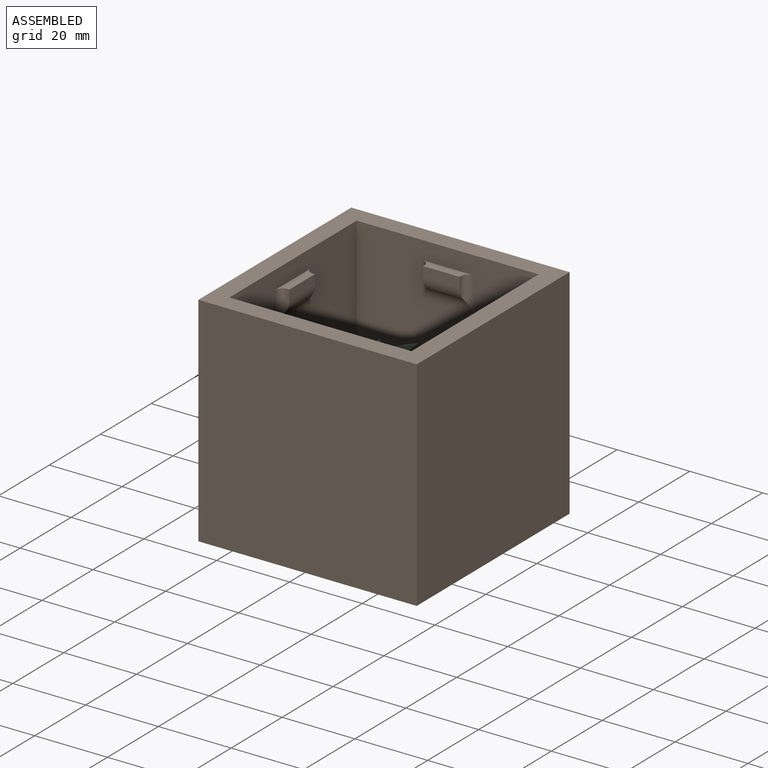
[diagram: assembled view]
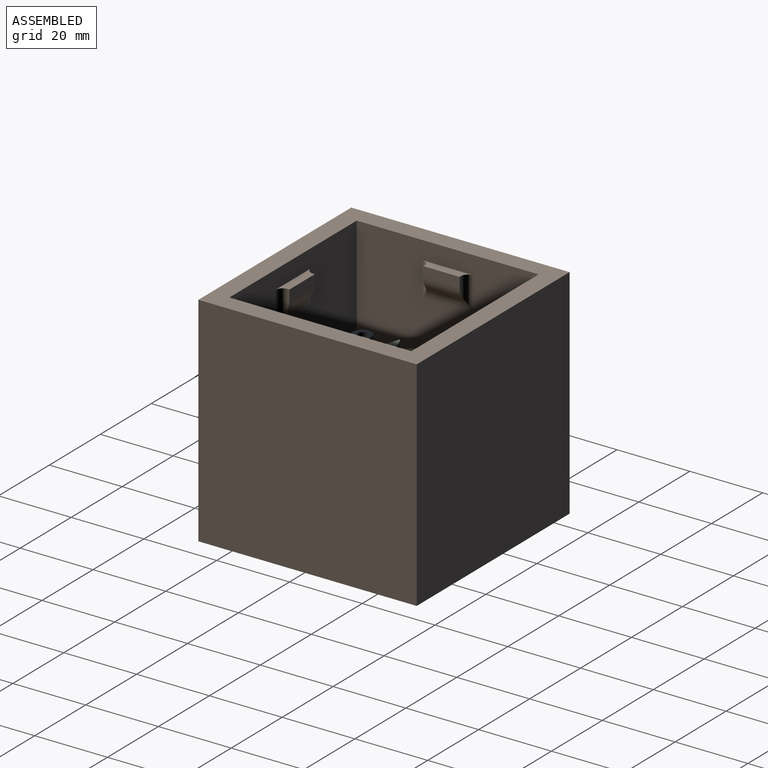
[diagram: assembled view, second angle]
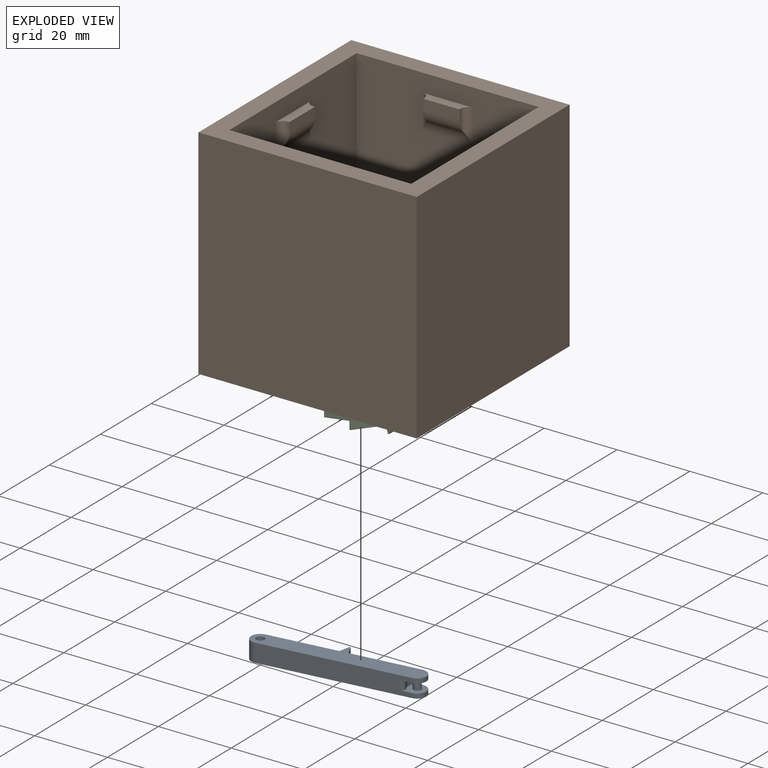
[diagram: exploded view]
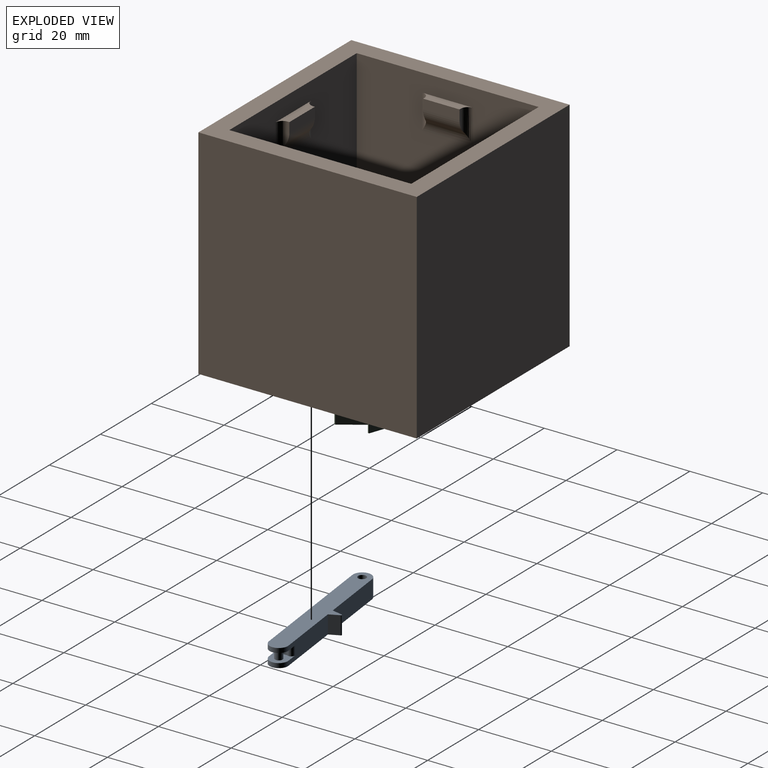
[diagram: exploded view, second angle]
ASSEMBLY  parts=3 mates=2
PART A: 18 faces, bbox 45x8x5 mm
  f0: cylinder r=2.5mm len=2.5mm, axis (0,0,-1), area 5.5mm2, adj f12,f14,f15,f16
  f1: cylinder r=1.04mm len=2.5mm, axis (0,0,-1), area 16.3mm2, adj f12,f14
  f2: plane 5x2.79mm, normal (-0.95,0.32,0), area 14.7mm2, adj f3,f9,f10,f17
  f3: plane 18.83x5mm, normal (0,1,0), area 94.2mm2, adj f2,f4,f9,f10
  f4: cylinder r=2.5mm len=5mm, axis (0,0,-1), area 39.3mm2, adj f3,f5,f9,f10
  f5: plane 40x5mm, normal (0,-1,0), area 192.1mm2, adj f4,f9,f10,f11,f12,f13,f14,f15
  f6: plane 18.83x5mm, normal (0,1,0), area 86.3mm2, adj f7,f9,f10,f11,f12,f13,f14,f16
  f7: plane 5x2.79mm, normal (0.95,0.32,0), area 14.7mm2, adj f6,f9,f10,f17
  f8: cylinder r=1.12mm len=5mm, axis (0,0,-1), area 35.3mm2, adj f9,f10
  f9: plane 45x7.96mm, normal (0,0,1), area 219.6mm2, adj f2,f3,f4,f5,f6,f7,f8,f13
  f10: plane 45x7.96mm, normal (0,0,-1), area 219.6mm2, adj f2,f3,f4,f5,f6,f7,f8,f11
  f11: cylinder r=2.5mm len=5mm, axis (0,0,-1), area 9.8mm2, adj f5,f6,f10,f12
  f12: plane 5.66x5mm, normal (0,0,1), area 18.2mm2, adj f0,f1,f5,f6,f11,f15,f16
  f13: cylinder r=2.5mm len=5mm, axis (0,0,1), area 9.8mm2, adj f5,f6,f9,f14
  f14: plane 5.66x5mm, normal (0,0,-1), area 18.2mm2, adj f0,f1,f5,f6,f13,f15,f16
  f15: cylinder r=1mm len=2.5mm, axis (0,0,-1), area 5mm2, adj f0,f5,f12,f14
  f16: cylinder r=1mm len=2.5mm, axis (0,0,-1), area 5mm2, adj f0,f6,f12,f14
  f17: cylinder r=0.25mm len=5mm, axis (0,0,1), area 3.1mm2, adj f2,f7,f9,f10
PART B: 51 faces, bbox 60x60x60 mm
  f0: plane 60x60mm, normal (0,0,1), area 1100mm2, adj f1,f2,f3,f4,f5,f6,f8,f9
  f1: plane 50x32mm, normal (0,1,0), area 1469.4mm2, adj f0,f2,f9,f10,f23,f27,f35,f36
  f2: plane 50x32mm, normal (-1,0,0), area 1469.4mm2, adj f0,f1,f8,f10,f24,f28,f37,f38
  f3: plane 60x60mm, normal (1,0,0), area 3600mm2, adj f0,f4,f6,f7
  f4: plane 60x60mm, normal (0,1,0), area 3600mm2, adj f0,f3,f5,f7
  f5: plane 60x60mm, normal (-1,0,0), area 3600mm2, adj f0,f4,f6,f7
  f6: plane 60x60mm, normal (0,-1,0), area 3600mm2, adj f0,f3,f5,f7
  f7: plane 60x60mm, normal (0,0,-1), area 3600mm2, adj f3,f4,f5,f6
  f8: plane 50x32mm, normal (0,-1,0), area 1469.4mm2, adj f0,f2,f9,f10,f26,f30,f41,f42
  f9: plane 50x32mm, normal (1,0,0), area 1469.4mm2, adj f0,f1,f8,f10,f25,f29,f39,f40
  f10: plane 50x50mm, normal (0,0,1), area 2460.7mm2, adj f1,f2,f8,f9,f43,f47
  f11: plane 10x2.72mm, normal (0,-1,0), area 27.2mm2, adj f12,f13,f26,f34
  f12: plane 4.9x0.5mm, normal (1,0,0), area 2.1mm2, adj f11,f26,f34,f42
  f13: plane 4.9x0.5mm, normal (-1,0,0), area 2.1mm2, adj f11,f26,f34,f41
  f14: plane 10x2.72mm, normal (1,0,0), area 27.2mm2, adj f15,f16,f25,f33
  f15: plane 4.9x0.5mm, normal (0,1,0), area 2.1mm2, adj f14,f25,f33,f39
  f16: plane 4.9x0.5mm, normal (0,-1,0), area 2.1mm2, adj f14,f25,f33,f40
  f17: plane 4.9x0.5mm, normal (0,1,0), area 2.1mm2, adj f18,f24,f32,f37
  f18: plane 10x2.72mm, normal (-1,0,0), area 27.2mm2, adj f17,f19,f24,f32
  f19: plane 4.9x0.5mm, normal (0,-1,0), area 2.1mm2, adj f18,f24,f32,f38
  f20: plane 4.9x0.5mm, normal (1,0,0), area 2.1mm2, adj f21,f23,f31,f35
  f21: plane 10x2.72mm, normal (0,1,0), area 27.2mm2, adj f20,f22,f23,f31
  f22: plane 4.9x0.5mm, normal (-1,0,0), area 2.1mm2, adj f21,f23,f31,f36
  f23: plane 14x2.5mm, normal (0,0,1), area 26.7mm2, adj f1,f20,f21,f22,f35,f36
  f24: plane 14x2.5mm, normal (0,0,1), area 26.7mm2, adj f2,f17,f18,f19,f37,f38
  f25: plane 14x2.5mm, normal (0,0,1), area 26.7mm2, adj f9,f14,f15,f16,f39,f40
  f26: plane 14x2.5mm, normal (0,0,1), area 26.7mm2, adj f8,f11,f12,f13,f41,f42
  f27: cylinder r=5mm len=14mm, axis (1,0,0), area 43.1mm2, adj f1,f31,f35,f36
  f28: cylinder r=5mm len=14mm, axis (0,-1,0), area 43.1mm2, adj f2,f32,f37,f38
  f29: cylinder r=5mm len=14mm, axis (0,1,0), area 43.1mm2, adj f9,f33,f39,f40
  f30: cylinder r=5mm len=14mm, axis (-1,0,0), area 43.1mm2, adj f8,f34,f41,f42
  f31: cylinder r=5mm len=10.29mm, axis (1,0,0), area 36.3mm2, adj f20,f21,f22,f27,f35,f36
  f32: cylinder r=5mm len=10.29mm, axis (0,-1,0), area 36.3mm2, adj f17,f18,f19,f28,f37,f38
  f33: cylinder r=5mm len=10.29mm, axis (0,1,0), area 36.3mm2, adj f14,f15,f16,f29,f39,f40
  f34: cylinder r=5mm len=10.29mm, axis (-1,0,0), area 36.3mm2, adj f11,f12,f13,f30,f41,f42
  f35: cylinder r=2mm len=9.33mm, axis (0,0,-1), area 22.4mm2, adj f1,f20,f23,f27,f31
  f36: cylinder r=2mm len=9.33mm, axis (0,0,1), area 22.4mm2, adj f1,f22,f23,f27,f31
  f37: cylinder r=2mm len=9.33mm, axis (0,0,-1), area 22.4mm2, adj f2,f17,f24,f28,f32
  f38: cylinder r=2mm len=9.33mm, axis (0,0,1), area 22.4mm2, adj f2,f19,f24,f28,f32
  f39: cylinder r=2mm len=9.33mm, axis (0,0,-1), area 22.4mm2, adj f9,f15,f25,f29,f33
  f40: cylinder r=2mm len=9.33mm, axis (0,0,1), area 22.4mm2, adj f9,f16,f25,f29,f33
  f41: cylinder r=2mm len=9.33mm, axis (0,0,1), area 22.4mm2, adj f8,f13,f26,f30,f34
  f42: cylinder r=2mm len=9.33mm, axis (0,0,-1), area 22.4mm2, adj f8,f12,f26,f30,f34
  f43: cylinder r=2.5mm len=5mm, axis (0,0,-1), area 31.4mm2, adj f10,f44
  f44: plane 5x5mm, normal (0,0,1), area 15.7mm2, adj f43,f46
  f45: plane 2.25x2.25mm, normal (0,0,1), area 4mm2, adj f46
  f46: cylinder r=1.12mm len=25mm, axis (0,0,-1), area 176.7mm2, adj f44,f45
  f47: cylinder r=2.5mm len=5mm, axis (0,0,-1), area 31.4mm2, adj f10,f48
  f48: plane 5x5mm, normal (0,0,1), area 15.7mm2, adj f47,f50
  f49: plane 2.25x2.25mm, normal (0,0,1), area 4mm2, adj f50
  f50: cylinder r=1.12mm len=12mm, axis (0,0,1), area 84.8mm2, adj f48,f49
PART C: 43 faces, bbox 27.9x29.1x10 mm
  f0: plane 10x7.96mm, normal (-0.24,0.97,0), area 82mm2, adj f1,f31,f32,f33
  f1: cylinder r=10mm len=10mm, axis (0,0,-1), area 1.9mm2, adj f0,f2,f31,f32
  f2: plane 10x4.31mm, normal (1,0,0), area 43.1mm2, adj f1,f31,f32,f34
  f3: plane 10x6.28mm, normal (-0.77,0.64,0), area 82mm2, adj f4,f31,f32,f34
  f4: cylinder r=10mm len=10mm, axis (0,0,-1), area 1.9mm2, adj f3,f5,f31,f32
  f5: plane 10x3.49mm, normal (0.81,0.59,0), area 43.1mm2, adj f4,f31,f32,f35
  f6: plane 10x8.18mm, normal (-1,0.07,0), area 82mm2, adj f7,f31,f32,f35
  f7: cylinder r=10mm len=10mm, axis (0,0,-1), area 1.9mm2, adj f6,f8,f31,f32
  f8: plane 10x4.1mm, normal (0.31,0.95,0), area 43.1mm2, adj f7,f31,f32,f38
  f9: plane 10x6.96mm, normal (-0.85,-0.53,0), area 82mm2, adj f10,f31,f32,f38
  f10: cylinder r=10mm len=10mm, axis (0,0,-1), area 1.9mm2, adj f9,f11,f31,f32
  f11: plane 10x4.1mm, normal (-0.31,0.95,0), area 43.1mm2, adj f10,f31,f32,f39
  f12: plane 10x7.6mm, normal (-0.38,-0.93,0), area 82mm2, adj f13,f31,f32,f39
  f13: cylinder r=10mm len=10mm, axis (0,0,-1), area 1.9mm2, adj f12,f14,f31,f32
  f14: plane 10x3.49mm, normal (-0.81,0.59,0), area 43.1mm2, adj f13,f31,f32,f40
  f15: plane 10x7.96mm, normal (0.24,-0.97,0), area 82mm2, adj f16,f31,f32,f40
  f16: cylinder r=10mm len=10mm, axis (0,0,-1), area 1.9mm2, adj f15,f17,f31,f32
  f17: plane 10x4.31mm, normal (-1,0,0), area 43.1mm2, adj f16,f31,f32,f41
  f18: plane 10x6.28mm, normal (0.77,-0.64,0), area 82mm2, adj f19,f31,f32,f41
  f19: cylinder r=10mm len=10mm, axis (0,0,-1), area 1.9mm2, adj f18,f20,f31,f32
  f20: plane 10x3.49mm, normal (-0.81,-0.59,0), area 43.1mm2, adj f19,f31,f32,f42
  f21: plane 10x8.18mm, normal (1,-0.07,0), area 82mm2, adj f22,f31,f32,f42
  f22: cylinder r=10mm len=10mm, axis (0,0,-1), area 1.9mm2, adj f21,f23,f31,f32
  f23: plane 10x4.1mm, normal (-0.31,-0.95,0), area 43.1mm2, adj f22,f31,f32,f37
  f24: plane 10x6.96mm, normal (0.85,0.53,0), area 82mm2, adj f25,f31,f32,f37
  f25: cylinder r=10mm len=10mm, axis (0,0,-1), area 1.9mm2, adj f24,f26,f31,f32
  f26: plane 10x4.1mm, normal (0.31,-0.95,0), area 43.1mm2, adj f25,f31,f32,f36
  f27: plane 10x7.6mm, normal (0.38,0.93,0), area 82mm2, adj f28,f31,f32,f36
  f28: cylinder r=10mm len=10mm, axis (0,0,-1), area 1.9mm2, adj f27,f29,f31,f32
  f29: plane 10x3.49mm, normal (0.81,-0.59,0), area 43.1mm2, adj f28,f31,f32,f33
  f30: cylinder r=1.12mm len=10mm, axis (0,0,-1), area 70.7mm2, adj f31,f32
  f31: plane 29.13x27.88mm, normal (0,0,1), area 433.8mm2, adj f0,f1,f2,f3,f4,f5,f6,f7
  f32: plane 29.13x27.88mm, normal (0,0,-1), area 433.8mm2, adj f0,f1,f2,f3,f4,f5,f6,f7
  f33: cylinder r=0.25mm len=10mm, axis (0,0,1), area 6.1mm2, adj f0,f29,f31,f32
  f34: cylinder r=0.25mm len=10mm, axis (0,0,1), area 6.1mm2, adj f2,f3,f31,f32
  f35: cylinder r=0.25mm len=10mm, axis (0,0,1), area 6.1mm2, adj f5,f6,f31,f32
  f36: cylinder r=0.25mm len=10mm, axis (0,0,1), area 6.1mm2, adj f26,f27,f31,f32
  f37: cylinder r=0.25mm len=10mm, axis (0,0,1), area 6.1mm2, adj f23,f24,f31,f32
  f38: cylinder r=0.25mm len=10mm, axis (0,0,1), area 6.1mm2, adj f8,f9,f31,f32
  f39: cylinder r=0.25mm len=10mm, axis (0,0,1), area 6.1mm2, adj f11,f12,f31,f32
  f40: cylinder r=0.25mm len=10mm, axis (0,0,1), area 6.1mm2, adj f14,f15,f31,f32
  f41: cylinder r=0.25mm len=10mm, axis (0,0,1), area 6.1mm2, adj f17,f18,f31,f32
  f42: cylinder r=0.25mm len=10mm, axis (0,0,1), area 6.1mm2, adj f20,f21,f31,f32
PLACE A rot(axis=(0,0,1),7deg) t=(-2.59,2.29,0)mm
PLACE B at identity
PLACE C rot(axis=(0,0,1),146.3deg) t=(0,0,0)mm
MATE revolute C.f30 <-> B.f46  axis (0,0,-1) through (0,0,30)mm
MATE revolute A.f4 <-> B.f47  axis (0,0,-1) through (-20,-20,30)mm
